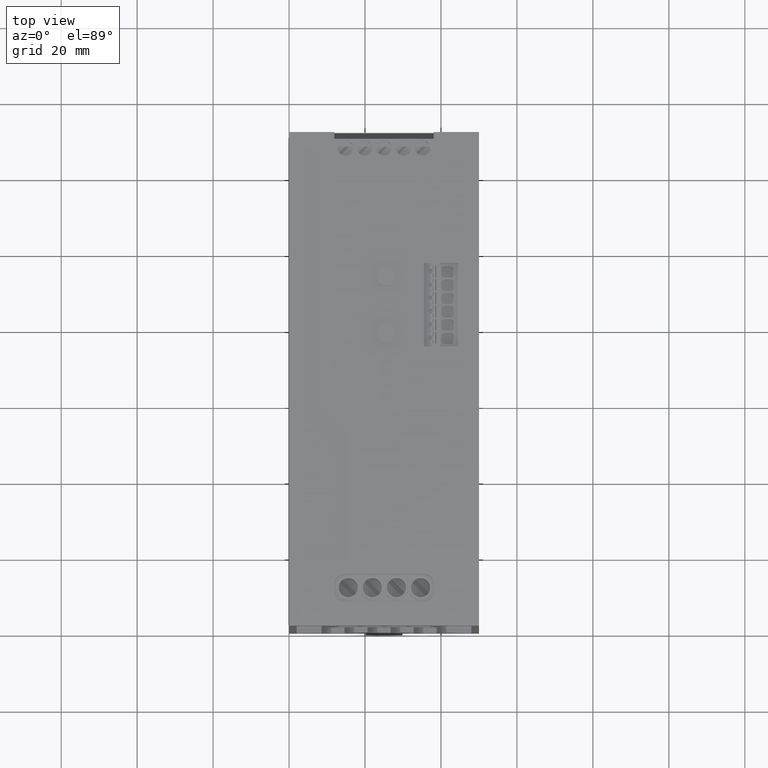
[diagram: clean part render]
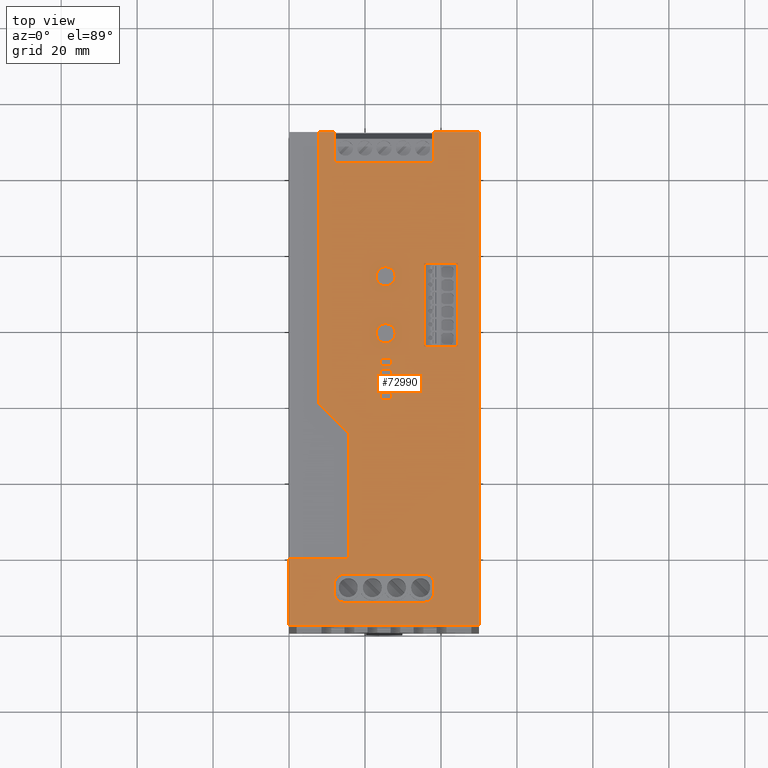
[diagram: same view with one face highlighted and labeled with its STEP entity id]
A machine part, top view. The second image highlights one B-rep face of the part: STEP entity #72990.
In plain terms, the highlighted planar face has unit normal (0, 0, 1).
Its self-contained STEP definition (entity closure, byte-faithful):
#12810=CARTESIAN_POINT('',(38.1,122.35,-0.800000000000023));
#12820=VERTEX_POINT('',#12810);
#12850=CARTESIAN_POINT('',(38.1,122.35,0.));
#12860=DIRECTION('',(0.,0.,1.));
#12870=VECTOR('',#12860,1.);
#12880=LINE('',#12850,#12870);
#12890=CARTESIAN_POINT('',(38.1,122.35,7.19999999999999));
#12900=VERTEX_POINT('',#12890);
#12910=EDGE_CURVE('',#12820,#12900,#12880,.T.);
#15220=CARTESIAN_POINT('',(23.94,122.35,58.7000000000001));
#15230=VERTEX_POINT('',#15220);
#15400=CARTESIAN_POINT('',(23.94,122.35,60.7000000000001));
#15410=VERTEX_POINT('',#15400);
#15440=CARTESIAN_POINT('',(23.94,122.35,0.));
#15450=DIRECTION('',(0.,0.,1.));
#15460=VECTOR('',#15450,1.);
#15470=LINE('',#15440,#15460);
#15480=EDGE_CURVE('',#15230,#15410,#15470,.T.);
#18030=CARTESIAN_POINT('',(26.94,122.35,60.7000000000001));
#18040=VERTEX_POINT('',#18030);
#18070=CARTESIAN_POINT('',(0.,122.35,60.7000000000001));
#18080=DIRECTION('',(1.,0.,0.));
#18090=VECTOR('',#18080,1.);
#18100=LINE('',#18070,#18090);
#18110=EDGE_CURVE('',#15410,#18040,#18100,.T.);
#22430=CARTESIAN_POINT('',(38.1335354708757,122.35,120.546464890801));
#22440=VERTEX_POINT('',#22430);
#22490=CARTESIAN_POINT('',(35.6335354708757,122.35,120.546464890801));
#22500=DIRECTION('',(0.,1.,0.));
#22510=DIRECTION('',(-1.,0.,0.));
#22520=AXIS2_PLACEMENT_3D('',#22490,#22500,#22510);
#22530=CIRCLE('',#22520,2.50000000000002);
#22540=CARTESIAN_POINT('',(35.6335354708757,122.35,123.046464890801));
#22550=VERTEX_POINT('',#22540);
#22560=EDGE_CURVE('',#22550,#22440,#22530,.T.);
#28610=CARTESIAN_POINT('',(22.94,122.35,37.2000000000001));
#28620=VERTEX_POINT('',#28610);
#28670=CARTESIAN_POINT('',(25.44,122.35,37.2000000000001));
#28680=DIRECTION('',(0.,-1.,0.));
#28690=DIRECTION('',(1.,0.,0.));
#28700=AXIS2_PLACEMENT_3D('',#28670,#28680,#28690);
#28710=CIRCLE('',#28700,2.5);
#28720=CARTESIAN_POINT('',(27.94,122.35,37.2000000000001));
#28730=VERTEX_POINT('',#28720);
#28740=EDGE_CURVE('',#28620,#28730,#28710,.T.);
#31580=CARTESIAN_POINT('',(23.94,122.35,69.7000000000001));
#31590=VERTEX_POINT('',#31580);
#31760=CARTESIAN_POINT('',(26.94,122.35,69.7000000000001));
#31770=VERTEX_POINT('',#31760);
#31800=CARTESIAN_POINT('',(0.,122.35,69.7000000000001));
#31810=DIRECTION('',(1.,0.,0.));
#31820=VECTOR('',#31810,1.);
#31830=LINE('',#31800,#31820);
#31840=EDGE_CURVE('',#31590,#31770,#31830,.T.);
#41350=CARTESIAN_POINT('',(0.,122.35,123.046464890801));
#41360=DIRECTION('',(1.,0.,0.));
#41370=VECTOR('',#41360,1.);
#41380=LINE('',#41350,#41370);
#41390=CARTESIAN_POINT('',(14.4335354708757,122.35,123.046464890801));
#41400=VERTEX_POINT('',#41390);
#41410=EDGE_CURVE('',#41400,#22550,#41380,.T.);
#45630=CARTESIAN_POINT('',(14.4335354708757,122.35,115.646464890801));
#45640=VERTEX_POINT('',#45630);
#45670=CARTESIAN_POINT('',(0.,122.35,115.646464890801));
#45680=DIRECTION('',(-1.,0.,0.));
#45690=VECTOR('',#45680,1.);
#45700=LINE('',#45670,#45690);
#45710=CARTESIAN_POINT('',(35.6335354708757,122.35,115.646464890801));
#45720=VERTEX_POINT('',#45710);
#45730=EDGE_CURVE('',#45720,#45640,#45700,.T.);
#53390=CARTESIAN_POINT('',(38.1335354708757,122.35,118.146464890801));
#53400=VERTEX_POINT('',#53390);
#53430=CARTESIAN_POINT('',(38.1335354708757,122.35,0.));
#53440=DIRECTION('',(0.,0.,-1.));
#53450=VECTOR('',#53440,1.);
#53460=LINE('',#53430,#53450);
#53470=EDGE_CURVE('',#22440,#53400,#53460,.T.);
#61510=CARTESIAN_POINT('',(0.,122.35,7.19999999999999));
#61520=DIRECTION('',(-1.,0.,0.));
#61530=VECTOR('',#61520,1.);
#61540=LINE('',#61510,#61530);
#61550=CARTESIAN_POINT('',(11.9,122.35,7.19999999999999));
#61560=VERTEX_POINT('',#61550);
#61570=EDGE_CURVE('',#12900,#61560,#61540,.T.);
#66270=CARTESIAN_POINT('',(11.9,122.35,0.));
#66280=DIRECTION('',(0.,0.,1.));
#66290=VECTOR('',#66280,1.);
#66300=LINE('',#66270,#66290);
#66310=CARTESIAN_POINT('',(11.9,122.35,-0.800000000000023));
#66320=VERTEX_POINT('',#66310);
#66330=EDGE_CURVE('',#66320,#61560,#66300,.T.);
#68500=CARTESIAN_POINT('',(26.94,122.35,61.7000000000001));
#68510=VERTEX_POINT('',#68500);
#68590=CARTESIAN_POINT('',(23.94,122.35,61.7000000000001));
#68600=VERTEX_POINT('',#68590);
#68630=CARTESIAN_POINT('',(0.,122.35,61.7000000000001));
#68640=DIRECTION('',(-1.,0.,0.));
#68650=VECTOR('',#68640,1.);
#68660=LINE('',#68630,#68650);
#68670=EDGE_CURVE('',#68510,#68600,#68660,.T.);
#69750=CARTESIAN_POINT('',(26.94,122.35,67.7000000000001));
#69760=VERTEX_POINT('',#69750);
#69790=CARTESIAN_POINT('',(26.94,122.35,0.));
#69800=DIRECTION('',(0.,0.,-1.));
#69810=VECTOR('',#69800,1.);
#69820=LINE('',#69790,#69810);
#69830=EDGE_CURVE('',#31770,#69760,#69820,.T.);
#70330=CARTESIAN_POINT('',(25.,122.35,64.2));
#70340=DIRECTION('',(-0.,1.,0.));
#70350=DIRECTION('',(1.,0.,0.));
#70360=AXIS2_PLACEMENT_3D('',#70330,#70340,#70350);
#70370=PLANE('',#70360);
#70380=EDGE_CURVE('',#28730,#28620,#28710,.T.);
#70390=ORIENTED_EDGE('',*,*,#70380,.T.);
#70400=ORIENTED_EDGE('',*,*,#28740,.T.);
#70410=EDGE_LOOP('',(#70400,#70390));
#70420=FACE_BOUND('',#70410,.T.);
#70430=ORIENTED_EDGE('',*,*,#69830,.F.);
#70440=CARTESIAN_POINT('',(0.,122.35,67.7000000000001));
#70450=DIRECTION('',(-1.,0.,0.));
#70460=VECTOR('',#70450,1.);
#70470=LINE('',#70440,#70460);
#70480=CARTESIAN_POINT('',(23.94,122.35,67.7000000000001));
#70490=VERTEX_POINT('',#70480);
#70500=EDGE_CURVE('',#69760,#70490,#70470,.T.);
#70510=ORIENTED_EDGE('',*,*,#70500,.F.);
#70520=CARTESIAN_POINT('',(23.94,122.35,0.));
#70530=DIRECTION('',(0.,0.,1.));
#70540=VECTOR('',#70530,1.);
#70550=LINE('',#70520,#70540);
#70560=EDGE_CURVE('',#70490,#31590,#70550,.T.);
#70570=ORIENTED_EDGE('',*,*,#70560,.F.);
#70580=ORIENTED_EDGE('',*,*,#31840,.F.);
#70590=EDGE_LOOP('',(#70580,#70570,#70510,#70430));
#70600=FACE_BOUND('',#70590,.T.);
#70610=CARTESIAN_POINT('',(44.5,122.35,0.));
#70620=DIRECTION('',(0.,0.,-1.));
#70630=VECTOR('',#70620,1.);
#70640=LINE('',#70610,#70630);
#70650=CARTESIAN_POINT('',(44.5,122.35,55.7));
#70660=VERTEX_POINT('',#70650);
#70670=CARTESIAN_POINT('',(44.5,122.35,33.7));
#70680=VERTEX_POINT('',#70670);
#70690=EDGE_CURVE('',#70660,#70680,#70640,.T.);
#70700=ORIENTED_EDGE('',*,*,#70690,.F.);
#70710=CARTESIAN_POINT('',(0.,122.35,33.7));
#70720=DIRECTION('',(-1.,0.,0.));
#70730=VECTOR('',#70720,1.);
#70740=LINE('',#70710,#70730);
#70750=CARTESIAN_POINT('',(35.5,122.35,33.7));
#70760=VERTEX_POINT('',#70750);
#70770=EDGE_CURVE('',#70680,#70760,#70740,.T.);
#70780=ORIENTED_EDGE('',*,*,#70770,.F.);
#70790=CARTESIAN_POINT('',(35.5,122.35,0.));
#70800=DIRECTION('',(0.,0.,1.));
#70810=VECTOR('',#70800,1.);
#70820=LINE('',#70790,#70810);
#70830=CARTESIAN_POINT('',(35.5,122.35,55.7));
#70840=VERTEX_POINT('',#70830);
#70850=EDGE_CURVE('',#70760,#70840,#70820,.T.);
#70860=ORIENTED_EDGE('',*,*,#70850,.F.);
#70870=CARTESIAN_POINT('',(0.,122.35,55.7));
#70880=DIRECTION('',(1.,0.,0.));
#70890=VECTOR('',#70880,1.);
#70900=LINE('',#70870,#70890);
#70910=EDGE_CURVE('',#70840,#70660,#70900,.T.);
#70920=ORIENTED_EDGE('',*,*,#70910,.F.);
#70930=EDGE_LOOP('',(#70920,#70860,#70780,#70700));
#70940=FACE_BOUND('',#70930,.T.);
#70950=CARTESIAN_POINT('',(0.,122.35,63.7000000000001));
#70960=DIRECTION('',(1.,0.,0.));
#70970=VECTOR('',#70960,1.);
#70980=LINE('',#70950,#70970);
#70990=CARTESIAN_POINT('',(23.94,122.35,63.7000000000001));
#71000=VERTEX_POINT('',#70990);
#71010=CARTESIAN_POINT('',(26.94,122.35,63.7000000000001));
#71020=VERTEX_POINT('',#71010);
#71030=EDGE_CURVE('',#71000,#71020,#70980,.T.);
#71040=ORIENTED_EDGE('',*,*,#71030,.F.);
#71050=CARTESIAN_POINT('',(26.94,122.35,0.));
#71060=DIRECTION('',(0.,0.,-1.));
#71070=VECTOR('',#71060,1.);
#71080=LINE('',#71050,#71070);
#71090=EDGE_CURVE('',#71020,#68510,#71080,.T.);
#71100=ORIENTED_EDGE('',*,*,#71090,.F.);
#71110=ORIENTED_EDGE('',*,*,#68670,.F.);
#71120=CARTESIAN_POINT('',(23.94,122.35,0.));
#71130=DIRECTION('',(0.,0.,1.));
#71140=VECTOR('',#71130,1.);
#71150=LINE('',#71120,#71140);
#71160=EDGE_CURVE('',#68600,#71000,#71150,.T.);
#71170=ORIENTED_EDGE('',*,*,#71160,.F.);
#71180=EDGE_LOOP('',(#71170,#71110,#71100,#71040));
#71190=FACE_BOUND('',#71180,.T.);
#71200=CARTESIAN_POINT('',(25.44,122.35,52.2000000000001));
#71210=DIRECTION('',(0.,-1.,0.));
#71220=DIRECTION('',(1.,0.,0.));
#71230=AXIS2_PLACEMENT_3D('',#71200,#71210,#71220);
#71240=CIRCLE('',#71230,2.50000000000001);
#71250=CARTESIAN_POINT('',(27.94,122.35,52.2000000000001));
#71260=VERTEX_POINT('',#71250);
#71270=CARTESIAN_POINT('',(22.94,122.35,52.2000000000001));
#71280=VERTEX_POINT('',#71270);
#71290=EDGE_CURVE('',#71260,#71280,#71240,.T.);
#71300=ORIENTED_EDGE('',*,*,#71290,.T.);
#71310=EDGE_CURVE('',#71280,#71260,#71240,.T.);
#71320=ORIENTED_EDGE('',*,*,#71310,.T.);
#71330=EDGE_LOOP('',(#71320,#71300));
#71340=FACE_BOUND('',#71330,.T.);
#71350=CARTESIAN_POINT('',(35.6335354708756,122.35,118.146464890801));
#71360=DIRECTION('',(0.,1.,0.));
#71370=DIRECTION('',(-1.,0.,0.));
#71380=AXIS2_PLACEMENT_3D('',#71350,#71360,#71370);
#71390=CIRCLE('',#71380,2.50000000000012);
#71400=EDGE_CURVE('',#53400,#45720,#71390,.T.);
#71410=ORIENTED_EDGE('',*,*,#71400,.F.);
#71420=ORIENTED_EDGE('',*,*,#45730,.F.);
#71430=CARTESIAN_POINT('',(14.4335354708757,122.35,118.146464890801));
#71440=DIRECTION('',(0.,-1.,0.));
#71450=DIRECTION('',(1.,0.,0.));
#71460=AXIS2_PLACEMENT_3D('',#71430,#71440,#71450);
#71470=CIRCLE('',#71460,2.50000000000007);
#71480=CARTESIAN_POINT('',(11.9335354708757,122.35,118.146464890801));
#71490=VERTEX_POINT('',#71480);
#71500=EDGE_CURVE('',#71490,#45640,#71470,.T.);
#71510=ORIENTED_EDGE('',*,*,#71500,.T.);
#71520=CARTESIAN_POINT('',(11.9335354708757,122.35,0.));
#71530=DIRECTION('',(0.,0.,1.));
#71540=VECTOR('',#71530,1.);
#71550=LINE('',#71520,#71540);
#71560=CARTESIAN_POINT('',(11.9335354708757,122.35,120.546464890801));
#71570=VERTEX_POINT('',#71560);
#71580=EDGE_CURVE('',#71490,#71570,#71550,.T.);
#71590=ORIENTED_EDGE('',*,*,#71580,.F.);
#71600=CARTESIAN_POINT('',(14.4335354708757,122.35,120.546464890801));
#71610=DIRECTION('',(0.,1.,0.));
#71620=DIRECTION('',(-1.,0.,0.));
#71630=AXIS2_PLACEMENT_3D('',#71600,#71610,#71620);
#71640=CIRCLE('',#71630,2.50000000000003);
#71650=EDGE_CURVE('',#71570,#41400,#71640,.T.);
#71660=ORIENTED_EDGE('',*,*,#71650,.F.);
#71670=ORIENTED_EDGE('',*,*,#41410,.F.);
#71680=ORIENTED_EDGE('',*,*,#22560,.F.);
#71690=ORIENTED_EDGE('',*,*,#53470,.F.);
#71700=EDGE_LOOP('',(#71690,#71680,#71670,#71660,#71590,#71510,#71420,
#71410));
#71710=FACE_BOUND('',#71700,.T.);
#71720=CARTESIAN_POINT('',(0.,122.35,64.7000000000001));
#71730=DIRECTION('',(-1.,0.,0.));
#71740=VECTOR('',#71730,1.);
#71750=LINE('',#71720,#71740);
#71760=CARTESIAN_POINT('',(26.94,122.35,64.7000000000001));
#71770=VERTEX_POINT('',#71760);
#71780=CARTESIAN_POINT('',(23.94,122.35,64.7000000000001));
#71790=VERTEX_POINT('',#71780);
#71800=EDGE_CURVE('',#71770,#71790,#71750,.T.);
#71810=ORIENTED_EDGE('',*,*,#71800,.F.);
#71820=CARTESIAN_POINT('',(23.94,122.35,0.));
#71830=DIRECTION('',(0.,0.,1.));
#71840=VECTOR('',#71830,1.);
#71850=LINE('',#71820,#71840);
#71860=CARTESIAN_POINT('',(23.94,122.35,66.7000000000001));
#71870=VERTEX_POINT('',#71860);
#71880=EDGE_CURVE('',#71790,#71870,#71850,.T.);
#71890=ORIENTED_EDGE('',*,*,#71880,.F.);
#71900=CARTESIAN_POINT('',(0.,122.35,66.7000000000001));
#71910=DIRECTION('',(1.,0.,0.));
#71920=VECTOR('',#71910,1.);
#71930=LINE('',#71900,#71920);
#71940=CARTESIAN_POINT('',(26.94,122.35,66.7000000000001));
#71950=VERTEX_POINT('',#71940);
#71960=EDGE_CURVE('',#71870,#71950,#71930,.T.);
#71970=ORIENTED_EDGE('',*,*,#71960,.F.);
#71980=CARTESIAN_POINT('',(26.94,122.35,0.));
#71990=DIRECTION('',(0.,0.,-1.));
#72000=VECTOR('',#71990,1.);
#72010=LINE('',#71980,#72000);
#72020=EDGE_CURVE('',#71950,#71770,#72010,.T.);
#72030=ORIENTED_EDGE('',*,*,#72020,.F.);
#72040=EDGE_LOOP('',(#72030,#71970,#71890,#71810));
#72050=FACE_BOUND('',#72040,.T.);
#72060=ORIENTED_EDGE('',*,*,#18110,.F.);
#72070=CARTESIAN_POINT('',(26.94,122.35,0.));
#72080=DIRECTION('',(0.,0.,-1.));
#72090=VECTOR('',#72080,1.);
#72100=LINE('',#72070,#72090);
#72110=CARTESIAN_POINT('',(26.94,122.35,58.7000000000001));
#72120=VERTEX_POINT('',#72110);
#72130=EDGE_CURVE('',#18040,#72120,#72100,.T.);
#72140=ORIENTED_EDGE('',*,*,#72130,.F.);
#72150=CARTESIAN_POINT('',(0.,122.35,58.7000000000001));
#72160=DIRECTION('',(-1.,0.,0.));
#72170=VECTOR('',#72160,1.);
#72180=LINE('',#72150,#72170);
#72190=EDGE_CURVE('',#72120,#15230,#72180,.T.);
#72200=ORIENTED_EDGE('',*,*,#72190,.F.);
#72210=ORIENTED_EDGE('',*,*,#15480,.F.);
#72220=EDGE_LOOP('',(#72210,#72200,#72140,#72060));
#72230=FACE_BOUND('',#72220,.T.);
#72240=ORIENTED_EDGE('',*,*,#66330,.F.);
#72250=ORIENTED_EDGE('',*,*,#61570,.T.);
#72260=ORIENTED_EDGE('',*,*,#12910,.T.);
#72270=CARTESIAN_POINT('',(0.,122.35,-0.800000000000023));
#72280=DIRECTION('',(1.,0.,0.));
#72290=VECTOR('',#72280,1.);
#72300=LINE('',#72270,#72290);
#72310=CARTESIAN_POINT('',(50.,122.35,-0.800000000000023));
#72320=VERTEX_POINT('',#72310);
#72330=EDGE_CURVE('',#12820,#72320,#72300,.T.);
#72340=ORIENTED_EDGE('',*,*,#72330,.F.);
#72350=CARTESIAN_POINT('',(50.,122.35,0.));
#72360=DIRECTION('',(0.,0.,-1.));
#72370=VECTOR('',#72360,1.);
#72380=LINE('',#72350,#72370);
#72390=CARTESIAN_POINT('',(50.,122.35,129.2));
#72400=VERTEX_POINT('',#72390);
#72410=EDGE_CURVE('',#72400,#72320,#72380,.T.);
#72420=ORIENTED_EDGE('',*,*,#72410,.T.);
#72430=CARTESIAN_POINT('',(0.,122.35,129.2));
#72440=DIRECTION('',(-1.,0.,0.));
#72450=VECTOR('',#72440,1.);
#72460=LINE('',#72430,#72450);
#72470=CARTESIAN_POINT('',(0.,122.35,129.2));
#72480=VERTEX_POINT('',#72470);
#72490=EDGE_CURVE('',#72400,#72480,#72460,.T.);
#72500=ORIENTED_EDGE('',*,*,#72490,.F.);
#72510=CARTESIAN_POINT('',(0.,122.35,0.));
#72520=DIRECTION('',(0.,0.,-1.));
#72530=VECTOR('',#72520,1.);
#72540=LINE('',#72510,#72530);
#72550=CARTESIAN_POINT('',(0.,122.35,111.6));
#72560=VERTEX_POINT('',#72550);
#72570=EDGE_CURVE('',#72480,#72560,#72540,.T.);
#72580=ORIENTED_EDGE('',*,*,#72570,.F.);
#72590=CARTESIAN_POINT('',(0.,122.35,111.6));
#72600=DIRECTION('',(-1.,0.,0.));
#72610=VECTOR('',#72600,1.);
#72620=LINE('',#72590,#72610);
#72630=CARTESIAN_POINT('',(15.5785354708757,122.35,111.6));
#72640=VERTEX_POINT('',#72630);
#72650=EDGE_CURVE('',#72640,#72560,#72620,.T.);
#72660=ORIENTED_EDGE('',*,*,#72650,.T.);
#72670=CARTESIAN_POINT('',(15.5785354708757,122.35,0.));
#72680=DIRECTION('',(0.,0.,1.));
#72690=VECTOR('',#72680,1.);
#72700=LINE('',#72670,#72690);
#72710=CARTESIAN_POINT('',(15.5785354708757,122.35,78.5118688042091));
#72720=VERTEX_POINT('',#72710);
#72730=EDGE_CURVE('',#72720,#72640,#72700,.T.);
#72740=ORIENTED_EDGE('',*,*,#72730,.T.);
#72750=CARTESIAN_POINT('',(15.5785354708757,122.35,78.511868804209));
#72760=DIRECTION('',(-0.707106781186549,0.,-0.707106781186547));
#72770=VECTOR('',#72760,1.);
#72780=LINE('',#72750,#72770);
#72790=CARTESIAN_POINT('',(7.76666666666667,122.35,70.7));
#72800=VERTEX_POINT('',#72790);
#72810=EDGE_CURVE('',#72720,#72800,#72780,.T.);
#72820=ORIENTED_EDGE('',*,*,#72810,.F.);
#72830=CARTESIAN_POINT('',(7.76666666666667,122.35,0.));
#72840=DIRECTION('',(0.,0.,1.));
#72850=VECTOR('',#72840,1.);
#72860=LINE('',#72830,#72850);
#72870=CARTESIAN_POINT('',(7.76666666666667,122.35,-0.800000000000023));
#72880=VERTEX_POINT('',#72870);
#72890=EDGE_CURVE('',#72880,#72800,#72860,.T.);
#72900=ORIENTED_EDGE('',*,*,#72890,.T.);
#72910=CARTESIAN_POINT('',(0.,122.35,-0.800000000000023));
#72920=DIRECTION('',(1.,0.,0.));
#72930=VECTOR('',#72920,1.);
#72940=LINE('',#72910,#72930);
#72950=EDGE_CURVE('',#72880,#66320,#72940,.T.);
#72960=ORIENTED_EDGE('',*,*,#72950,.F.);
#72970=EDGE_LOOP('',(#72960,#72900,#72820,#72740,#72660,#72580,#72500,
#72420,#72340,#72260,#72250,#72240));
#72980=FACE_OUTER_BOUND('',#72970,.T.);
#72990=ADVANCED_FACE('',(#70420,#70600,#70940,#71190,#71340,#71710,
#72050,#72230,#72980),#70370,.T.);